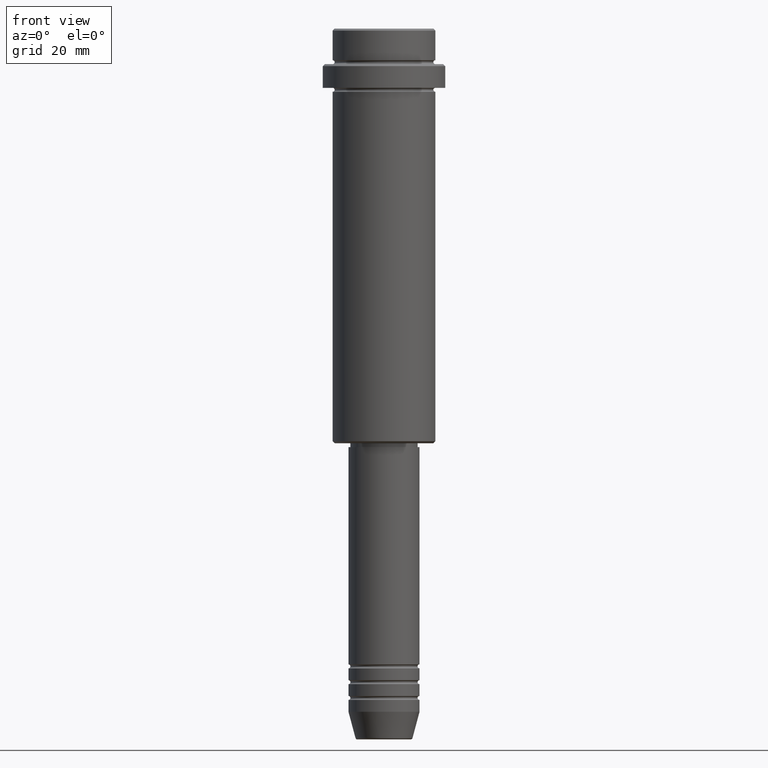
[diagram: clean part render]
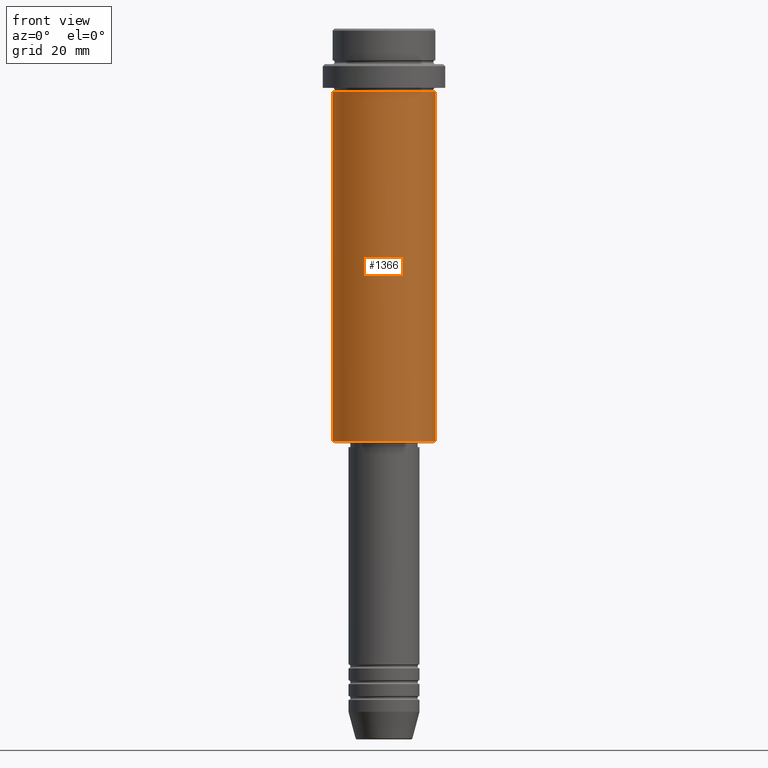
[diagram: same view with one face highlighted and labeled with its STEP entity id]
A machine part, front view. The second image highlights one B-rep face of the part: STEP entity #1366.
In plain terms, the highlighted cylindrical surface (partial cylindrical patch) has radius 13 mm, axis along (-0, -0, 1).
Its self-contained STEP definition (entity closure, byte-faithful):
#4 = DIRECTION ( 'NONE',  ( 1.000000000000000000, 0.000000000000000000, 0.000000000000000000 ) ) ;
#59 = CARTESIAN_POINT ( 'NONE',  ( -13.00000000000000000, 1.592040838891559095E-15, 0.000000000000000000 ) ) ;
#72 = EDGE_CURVE ( 'NONE', #517, #685, #833, .T. ) ;
#140 = CARTESIAN_POINT ( 'NONE',  ( -13.00000000000000000, 1.592040838891559095E-15, -15.99999999999997335 ) ) ;
#143 = VECTOR ( 'NONE', #742, 1000.000000000000000 ) ;
#213 = AXIS2_PLACEMENT_3D ( 'NONE', #1002, #457, #4 ) ;
#240 = CIRCLE ( 'NONE', #332, 13.00000000000000000 ) ;
#272 = CARTESIAN_POINT ( 'NONE',  ( 13.00000000000000000, 0.000000000000000000, -104.4999999999999574 ) ) ;
#289 = DIRECTION ( 'NONE',  ( -0.000000000000000000, -0.000000000000000000, 1.000000000000000000 ) ) ;
#318 = ORIENTED_EDGE ( 'NONE', *, *, #414, .F. ) ;
#332 = AXIS2_PLACEMENT_3D ( 'NONE', #839, #289, #394 ) ;
#394 = DIRECTION ( 'NONE',  ( -1.000000000000000000, 0.000000000000000000, 0.000000000000000000 ) ) ;
#414 = EDGE_CURVE ( 'NONE', #685, #815, #842, .T. ) ;
#431 = ORIENTED_EDGE ( 'NONE', *, *, #72, .F. ) ;
#457 = DIRECTION ( 'NONE',  ( -0.000000000000000000, -0.000000000000000000, 1.000000000000000000 ) ) ;
#462 = CARTESIAN_POINT ( 'NONE',  ( 13.00000000000000000, 0.000000000000000000, 0.000000000000000000 ) ) ;
#476 = CARTESIAN_POINT ( 'NONE',  ( 0.000000000000000000, 0.000000000000000000, 0.000000000000000000 ) ) ;
#517 = VERTEX_POINT ( 'NONE', #1185 ) ;
#601 = LINE ( 'NONE', #462, #886 ) ;
#608 = FACE_OUTER_BOUND ( 'NONE', #1214, .T. ) ;
#668 = ORIENTED_EDGE ( 'NONE', *, *, #1304, .T. ) ;
#685 = VERTEX_POINT ( 'NONE', #140 ) ;
#742 = DIRECTION ( 'NONE',  ( -0.000000000000000000, -0.000000000000000000, 1.000000000000000000 ) ) ;
#745 = CARTESIAN_POINT ( 'NONE',  ( 13.00000000000000000, 0.000000000000000000, -15.99999999999997335 ) ) ;
#752 = EDGE_CURVE ( 'NONE', #517, #1021, #240, .T. ) ;
#758 = AXIS2_PLACEMENT_3D ( 'NONE', #476, #1149, #901 ) ;
#815 = VERTEX_POINT ( 'NONE', #745 ) ;
#833 = LINE ( 'NONE', #59, #143 ) ;
#839 = CARTESIAN_POINT ( 'NONE',  ( 0.000000000000000000, 0.000000000000000000, -104.4999999999999574 ) ) ;
#842 = CIRCLE ( 'NONE', #213, 13.00000000000000000 ) ;
#886 = VECTOR ( 'NONE', #1054, 1000.000000000000000 ) ;
#901 = DIRECTION ( 'NONE',  ( 1.000000000000000000, 0.000000000000000000, 0.000000000000000000 ) ) ;
#1002 = CARTESIAN_POINT ( 'NONE',  ( 0.000000000000000000, 0.000000000000000000, -15.99999999999997335 ) ) ;
#1021 = VERTEX_POINT ( 'NONE', #272 ) ;
#1054 = DIRECTION ( 'NONE',  ( -0.000000000000000000, -0.000000000000000000, 1.000000000000000000 ) ) ;
#1066 = CYLINDRICAL_SURFACE ( 'NONE', #758, 13.00000000000000000 ) ;
#1149 = DIRECTION ( 'NONE',  ( -0.000000000000000000, -0.000000000000000000, 1.000000000000000000 ) ) ;
#1185 = CARTESIAN_POINT ( 'NONE',  ( -13.00000000000000000, 1.592040838891559095E-15, -104.4999999999999574 ) ) ;
#1193 = ORIENTED_EDGE ( 'NONE', *, *, #752, .T. ) ;
#1214 = EDGE_LOOP ( 'NONE', ( #431, #1193, #668, #318 ) ) ;
#1304 = EDGE_CURVE ( 'NONE', #1021, #815, #601, .T. ) ;
#1366 = ADVANCED_FACE ( 'NONE', ( #608 ), #1066, .T. ) ;